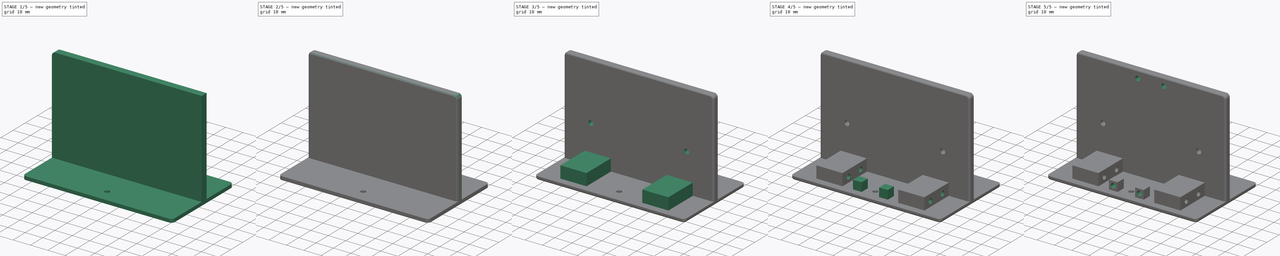
[diagram: build sequence overview — one tinted view per stage of 5, left to right]
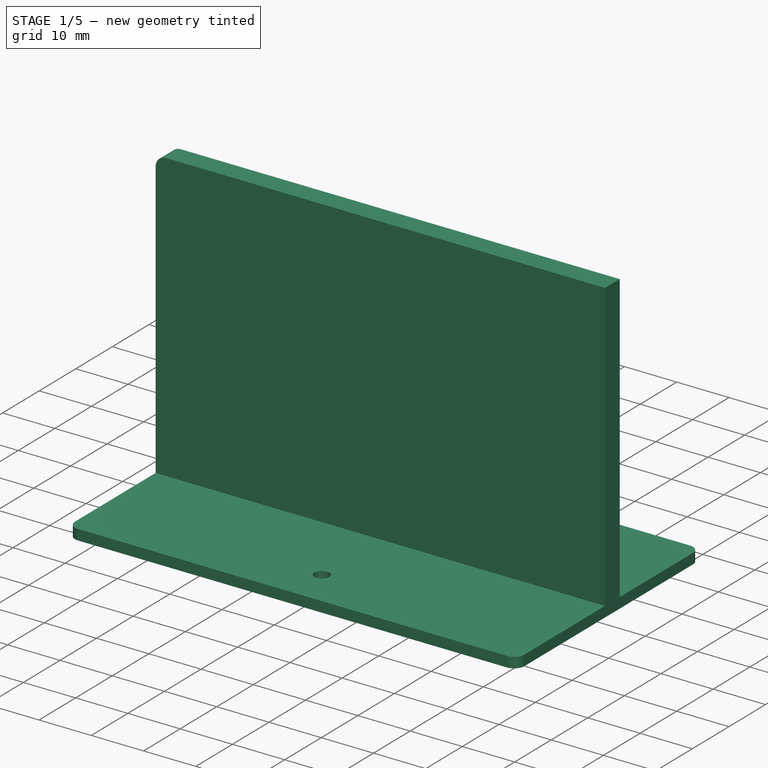
[diagram: stage 1 of 5 — iso view after this stage's code; geometry added in this stage tinted green]
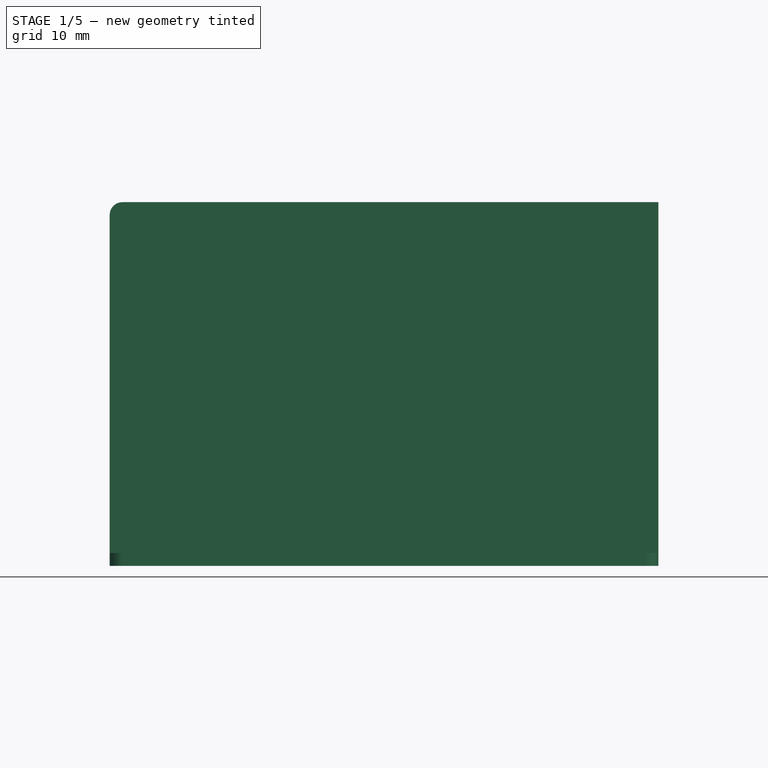
[diagram: stage 1 of 5 — front view after this stage's code; geometry added in this stage tinted green]
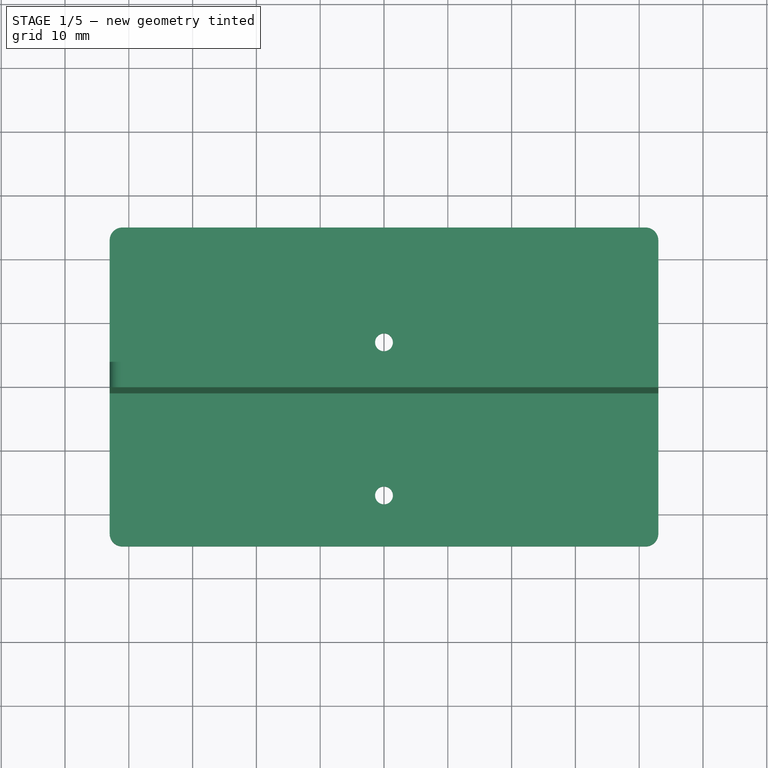
[diagram: stage 1 of 5 — top view after this stage's code; geometry added in this stage tinted green]
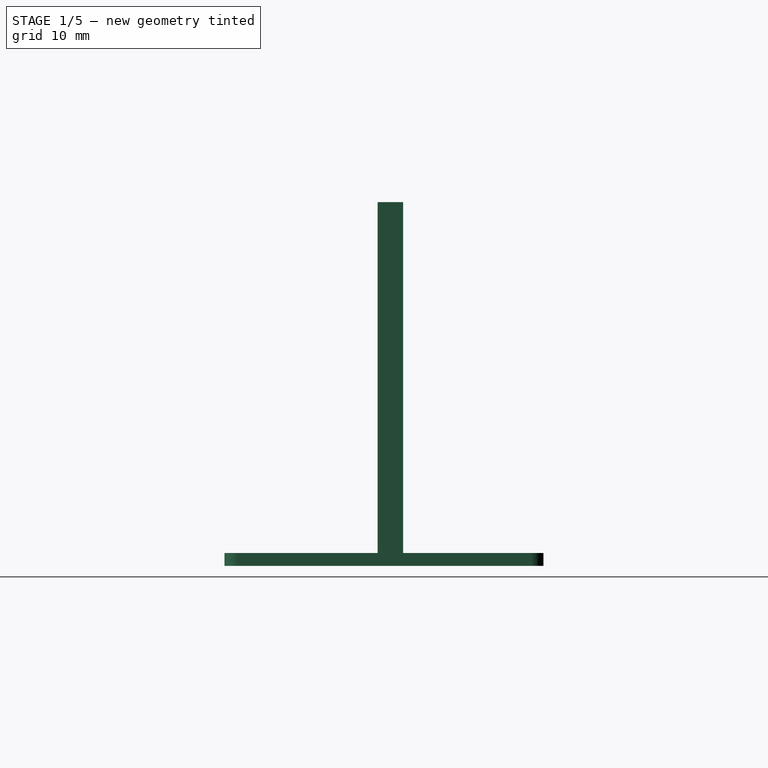
[diagram: stage 1 of 5 — right view after this stage's code; geometry added in this stage tinted green]
FCSTD DOCUMENT  (FreeCAD 0.20R29177 +426 (Git))
Label: 7F_chestbase_battery
License: All rights reserved
LicenseURL: http://en.wikipedia.org/wiki/All_rights_reserved
objects: Sketcher::SketchObject×10, PartDesign::Pocket×6, PartDesign::Fillet×5, PartDesign::Pad×4, Spreadsheet::Sheet×1, PartDesign::Body×1
note: 41 computed .brp shape members not serialized (recipe doc carries the construction recipe); baked Part::Feature solids carry a one-line shape summary decoded from their .brp

FEATURE [Sketcher::SketchObject] Sketch  label="basePlateSketch"
  FullyConstrained = true
  MapMode = 5
  Support = -> [XY_Plane]
  expr: Constraints[19] = Spreadsheet.base_x_len
  expr: Constraints[20] = Spreadsheet.base_y_len
  expr: Constraints[25] = Spreadsheet.servo_horn_center_y
  expr: Constraints[26] = Spreadsheet.servo_horn_outer_y
  expr: Constraints[28] = Spreadsheet.servo_hole_dia
  sketch-geometry (12):
    g0: ArcOfCircle CenterX=-41 CenterY=23 CenterZ=0 NormalX=0 NormalY=0 NormalZ=1 AngleXU=0 Radius=2 StartAngle=1.5708 EndAngle=3.14159
    g1: LineSegment StartX=-41 StartY=25 StartZ=0 EndX=41 EndY=25 EndZ=0
    g2: ArcOfCircle CenterX=41 CenterY=23 CenterZ=0 NormalX=0 NormalY=0 NormalZ=1 AngleXU=0 Radius=2 StartAngle=7e-16 EndAngle=1.5708
    g3: LineSegment StartX=43 StartY=23 StartZ=0 EndX=43 EndY=-23 EndZ=0
    g4: ArcOfCircle CenterX=41 CenterY=-23 CenterZ=0 NormalX=0 NormalY=0 NormalZ=1 AngleXU=0 Radius=2 StartAngle=4.71239 EndAngle=6.28319
    g5: LineSegment StartX=41 StartY=-25 StartZ=0 EndX=-41 EndY=-25 EndZ=0
    g6: ArcOfCircle CenterX=-41 CenterY=-23 CenterZ=0 NormalX=0 NormalY=0 NormalZ=1 AngleXU=0 Radius=2 StartAngle=3.14159 EndAngle=4.71239
    g7: LineSegment StartX=-43 StartY=-23 StartZ=0 EndX=-43 EndY=23 EndZ=0
    g8: GeomPoint X=-43 Y=25 Z=0
    g9: GeomPoint X=43 Y=-25 Z=0
    g10: Circle CenterX=0 CenterY=7 CenterZ=0 NormalX=0 NormalY=0 NormalZ=1 AngleXU=0 Radius=1.4
    g11: Circle CenterX=0 CenterY=-17 CenterZ=0 NormalX=0 NormalY=0 NormalZ=1 AngleXU=0 Radius=1.4
  constraints (29):
    c: Tangent(g0,g1) = 1.5708
    c: Tangent(g1,g2) = 1.5708
    c: Tangent(g2,g3) = 1.5708
    c: Tangent(g3,g4) = 1.5708
    c: Tangent(g4,g5) = 1.5708
    c: Tangent(g5,g6) = 1.5708
    c: Tangent(g6,g7) = 1.5708
    c: Tangent(g7,g0) = 1.5708
    c: Horizontal(g1)
    c: Horizontal(g5)
    c: Vertical(g3)
    c: Vertical(g7)
    c: Equal(g0,g2)
    c: Equal(g2,g4)
    c: Equal(g4,g6)
    c: PointOnObject(g8,g1)
    c: PointOnObject(g8,g7)
    c: PointOnObject(g9,g3)
    c: PointOnObject(g9,g5)
    c: DistanceX(g0,g2) = 86
    c: DistanceY(g5,g0) = 50
    c: Symmetric(g0,g4,g-1)
    c: DistanceX(g2,g2) = 2
    c: PointOnObject(g10,g-2)
    c: PointOnObject(g11,g-2)
    c: DistanceY(g10,g1) = 18
    c: DistanceY(g11,g1) = 42
    c: Equal(g10,g11)
    c: Diameter(g10) = 2.8
FEATURE [Spreadsheet::Sheet] Spreadsheet
  cells = A3=base_y_len; B3(base_y_len)=50; A4=base_x_len; B4(base_x_len)=86; A5=servo_horn_center_y; B5(servo_horn_center_y)=18; A6=servo_horn_outer_y; B6(servo_horn_outer_y)==B5 + 24; A7=servo_hole_dia; B7(servo_hole_dia)=2.8; A8=thickness_plate; B8(thickness_plate)=2; A9=thickness_walls; B9(thickness_walls)=4; A10=battery_wall_y; B10(battery_wall_y)=22; A11=wall_height; B11(wall_height)=55; A12=battery_hole_distance; B12(battery_hole_distance)=55; A13=battery_hole_z_pos; B13(battery_hole_z_pos)=22; C13=batterholder heigth (20mm) plus screwhead (2); A14=servo_outer; B14(servo_outer)=12; A15=servo_holder_x_len; B15(servo_holder_x_len)=15; A16=servo_holder_y_len; B16(servo_holder_y_len)=6.85; A17=servho_holder_z_len; B17(servho_holder_z_len)=20; A18=servo_hole_inner_y; B18(servo_hole_inner_y)=6; C18=1mm from wall, 5mm distance; A19=servo_hole_outer_y; B19(servo_hole_outer_y)=16; C19=1mm from wall, 15mm distance; A20=servo_hole_center_z ; B20(servo_hole_center_z_)==B8 + 3; A21=backplate_side; B21(backplate_side)=5; A22=backplate_x_sym_dist; B22(backplate_x_sym_dist)=5; A23=backplate_hole_z_dist; B23(backplate_hole_z_dist)=5; A24=wall_backplate_hole_z_dist; B24(wall_backplate_hole_z_dist)==B8 + B22 / 2
FEATURE [PartDesign::Pad] Pad  label="basePlatePad"
  Direction = (0,0,1)
  Length = 2
  Length2 = 10
  Profile = -> Sketch
  ReferenceAxis = -> Sketch [N_Axis]
  Type = 0
  expr: Length = Spreadsheet.thickness_plate
FEATURE [Sketcher::SketchObject] Sketch001  label="batteryWallSketch"
  ExternalGeometry = -> [Pad]
  FullyConstrained = true
  MapMode = 5
  Placement = pos=(0,0,2) rot=(0,0,1;0rad)
  Support = -> [Pad]
  expr: Constraints[10] = Spreadsheet.battery_wall_y
  expr: Constraints[11] = Spreadsheet.thickness_walls
  sketch-geometry (4):
    g0: LineSegment StartX=-43 StartY=3 StartZ=0 EndX=43 EndY=3 EndZ=0
    g1: LineSegment StartX=43 StartY=3 StartZ=0 EndX=43 EndY=-1 EndZ=0
    g2: LineSegment StartX=43 StartY=-1 StartZ=0 EndX=-43 EndY=-1 EndZ=0
    g3: LineSegment StartX=-43 StartY=-1 StartZ=0 EndX=-43 EndY=3 EndZ=0
  constraints (12):
    c: Coincident(g0,g1)
    c: Coincident(g1,g2)
    c: Coincident(g2,g3)
    c: Coincident(g3,g0)
    c: Horizontal(g0)
    c: Horizontal(g2)
    c: Vertical(g1)
    c: Vertical(g3)
    c: PointOnObject(g0,g-3)
    c: PointOnObject(g1,g-4)
    c: DistanceY(g0,g-6) = 22
    c: DistanceY(g2,g0) = 4
FEATURE [PartDesign::Pad] Pad001  label="batteryWallPad"
  BaseFeature = -> Pad
  Direction = (0,0,1)
  Length = 55
  Length2 = 10
  Profile = -> Sketch001
  ReferenceAxis = -> Sketch001 [N_Axis]
  Type = 0
  expr: Length = Spreadsheet.wall_height
FEATURE [PartDesign::Fillet] Fillet
  Base = -> Pad001 [Edge34]
  BaseFeature = -> Pad001
  Radius = 2
  SupportTransform = false
  UseAllEdges = false
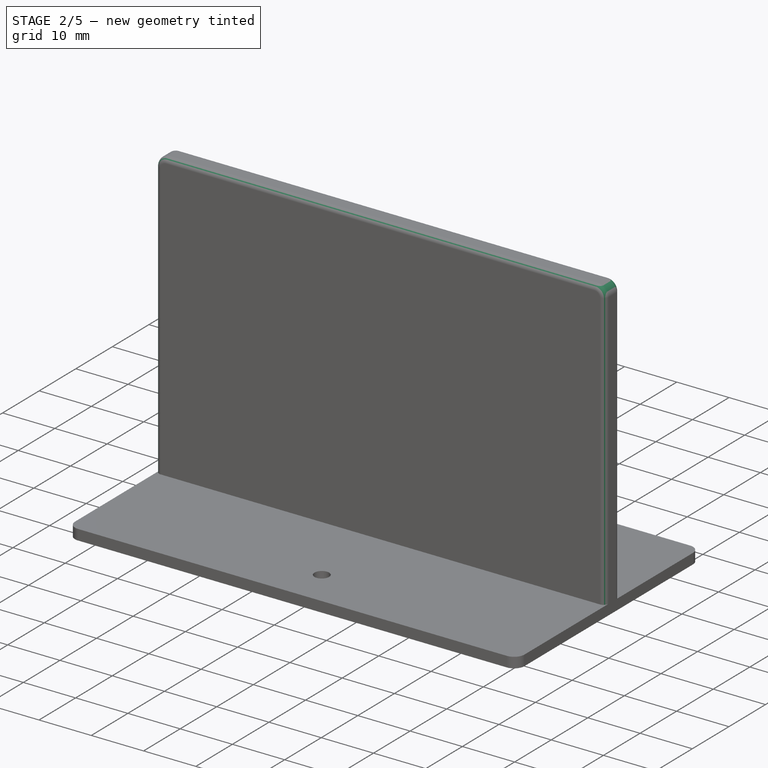
[diagram: stage 2 of 5 — iso view after this stage's code; geometry added in this stage tinted green]
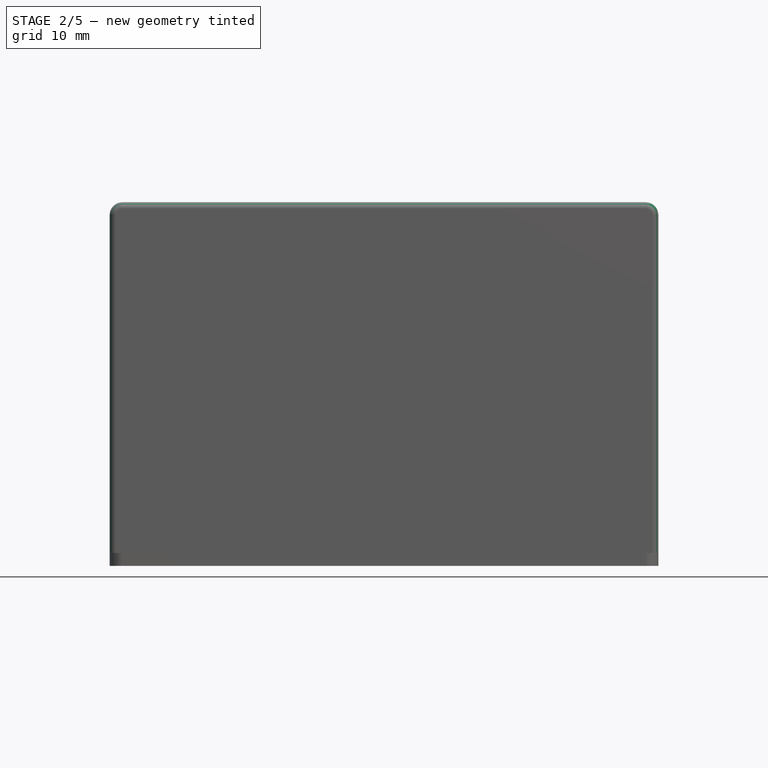
[diagram: stage 2 of 5 — front view after this stage's code; geometry added in this stage tinted green]
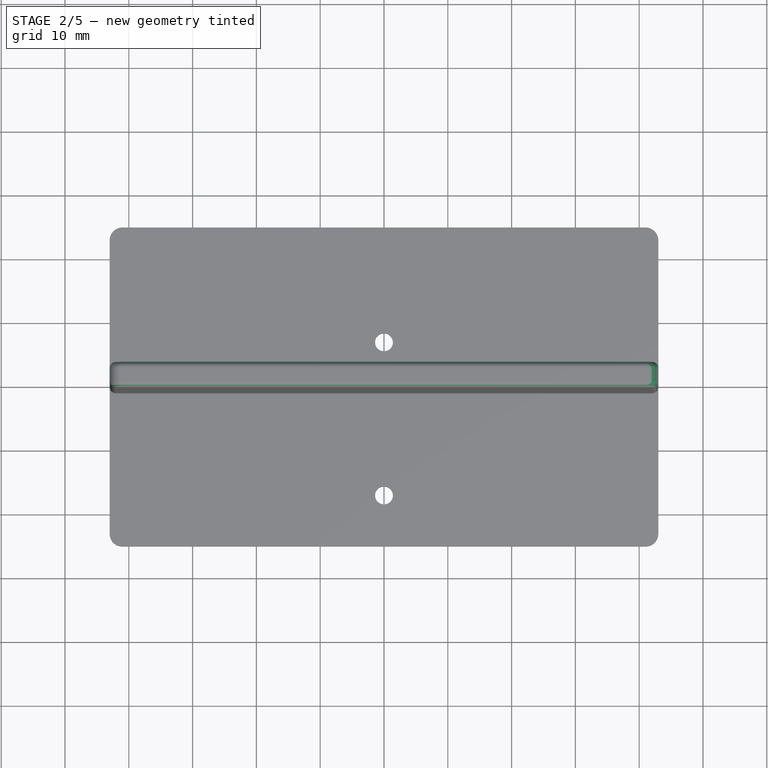
[diagram: stage 2 of 5 — top view after this stage's code; geometry added in this stage tinted green]
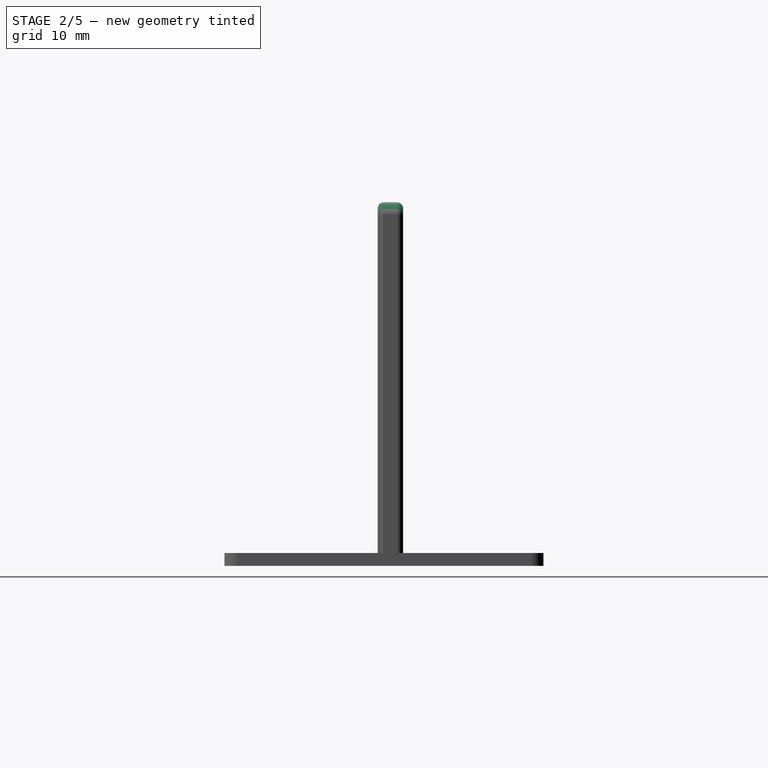
[diagram: stage 2 of 5 — right view after this stage's code; geometry added in this stage tinted green]
FEATURE [PartDesign::Fillet] Fillet001
  Base = -> Fillet [Edge24]
  BaseFeature = -> Fillet
  Radius = 2
  SupportTransform = false
  UseAllEdges = false
FEATURE [PartDesign::Fillet] Fillet002
  Base = -> Fillet001 [Edge17]
  BaseFeature = -> Fillet001
  Radius = 1
  SupportTransform = false
  UseAllEdges = false
FEATURE [PartDesign::Fillet] Fillet003
  Base = -> Fillet002 [Edge12]
  BaseFeature = -> Fillet002
  Radius = 1
  SupportTransform = false
  UseAllEdges = false
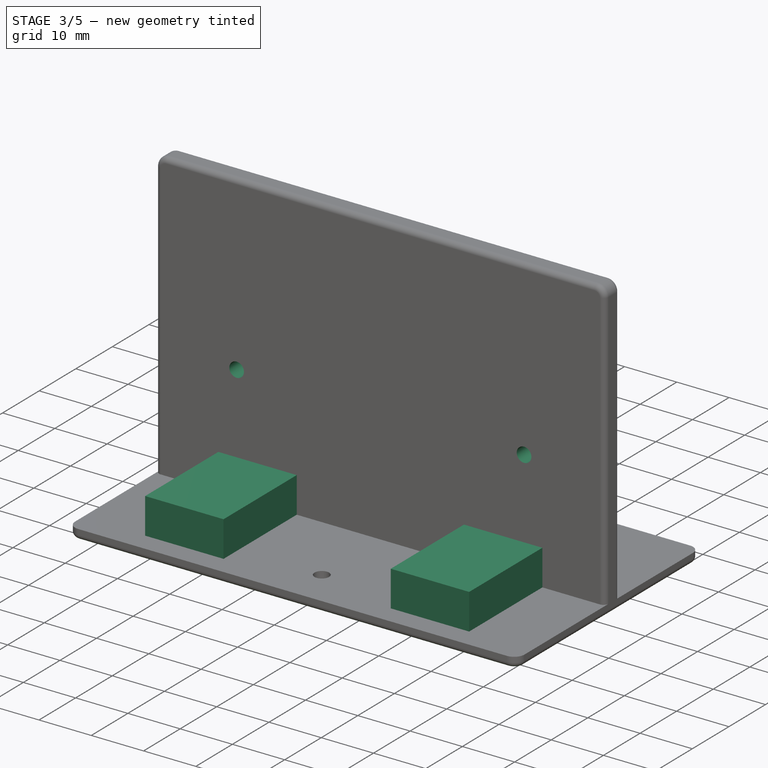
[diagram: stage 3 of 5 — iso view after this stage's code; geometry added in this stage tinted green]
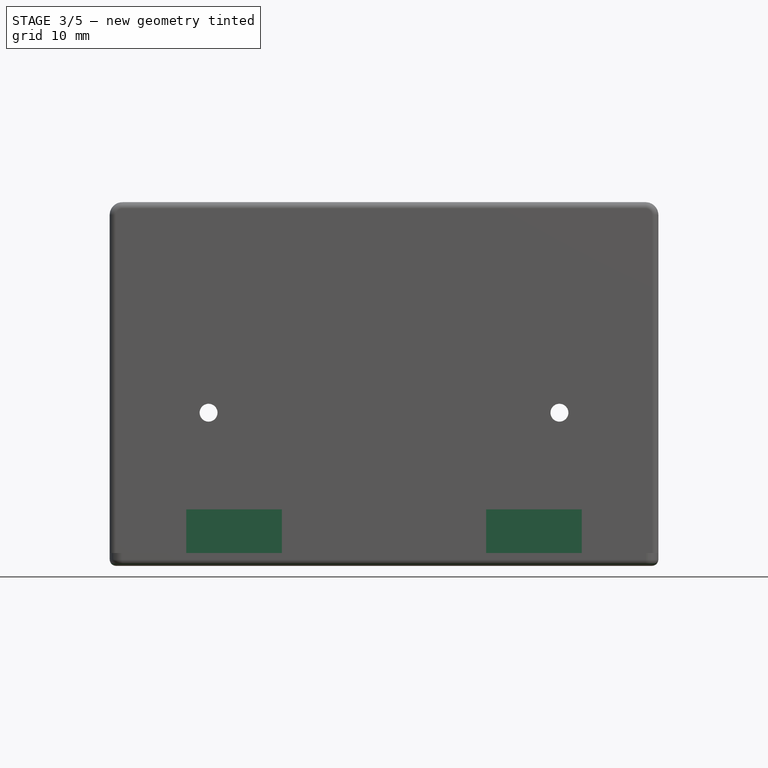
[diagram: stage 3 of 5 — front view after this stage's code; geometry added in this stage tinted green]
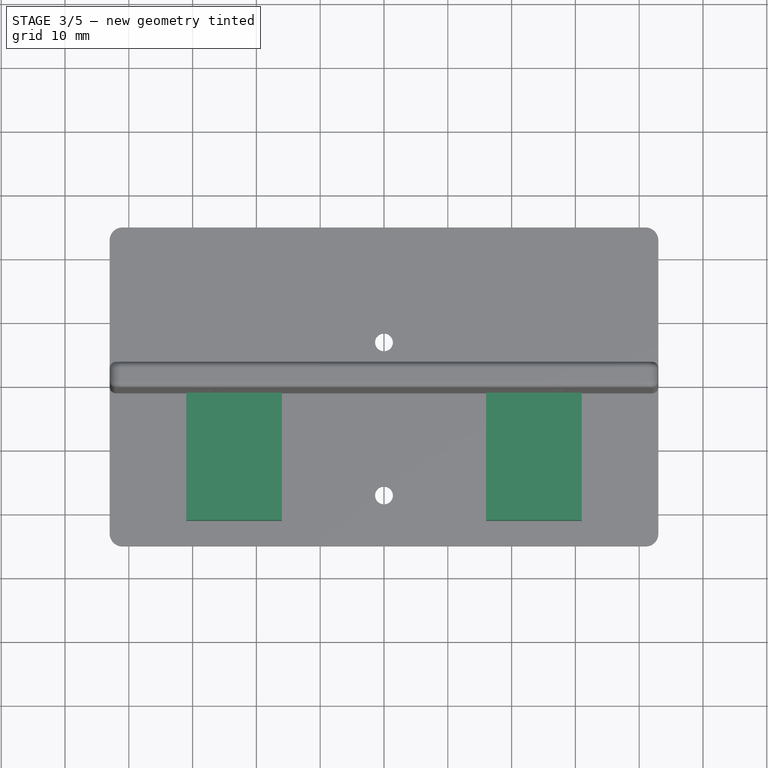
[diagram: stage 3 of 5 — top view after this stage's code; geometry added in this stage tinted green]
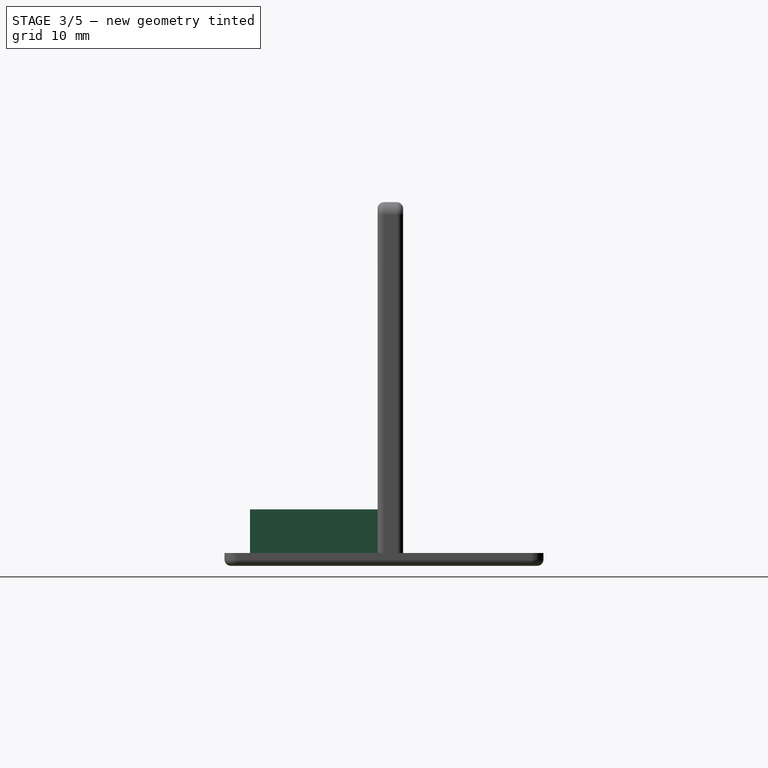
[diagram: stage 3 of 5 — right view after this stage's code; geometry added in this stage tinted green]
FEATURE [PartDesign::Fillet] Fillet004
  Base = -> Fillet003 [Edge62]
  BaseFeature = -> Fillet003
  Radius = 1
  SupportTransform = false
  UseAllEdges = false
FEATURE [Sketcher::SketchObject] Sketch002  label="batterHoleSketch"
  ExternalGeometry = -> [Fillet004]
  FullyConstrained = true
  MapMode = 5
  Placement = pos=(0,3,0) rot=(0,0.707107,0.707107;3.14159rad)
  Support = -> [Fillet004]
  expr: Constraints[1] = Spreadsheet.servo_hole_dia
  expr: Constraints[2] = Spreadsheet.battery_hole_distance
  expr: Constraints[4] = Spreadsheet.battery_hole_z_pos
  sketch-geometry (2):
    g0: Circle CenterX=-27.5 CenterY=24 CenterZ=0 NormalX=0 NormalY=0 NormalZ=1 AngleXU=0 Radius=1.4
    g1: Circle CenterX=27.5 CenterY=24 CenterZ=0 NormalX=0 NormalY=0 NormalZ=1 AngleXU=0 Radius=1.4
  constraints (5):
    c: Equal(g0,g1)
    c: Diameter(g0) = 2.8
    c: DistanceX(g0,g1) = 55
    c: Symmetric(g0,g1,g-2)
    c: DistanceY(g-4,g0) = 22
FEATURE [PartDesign::Pocket] Pocket
  BaseFeature = -> Fillet004
  Direction = (0,-1,2e-16)
  Length = 5
  Length2 = 5
  Profile = -> Sketch002
  ReferenceAxis = -> Sketch002 [N_Axis]
  Type = 0
FEATURE [Sketcher::SketchObject] Sketch003
  ExternalGeometry = -> [Pocket]
  FullyConstrained = true
  MapMode = 5
  Placement = pos=(0,0,2) rot=(0,0,1;0rad)
  Support = -> [Pocket]
  expr: Constraints[18] = Spreadsheet.servo_outer
  expr: Constraints[19] = Spreadsheet.servo_outer
  expr: Constraints[20] = Spreadsheet.servo_holder_x_len
  expr: Constraints[21] = Spreadsheet.servo_holder_x_len
  expr: Constraints[22] = Spreadsheet.servho_holder_z_len
  expr: Constraints[23] = Spreadsheet.servho_holder_z_len
  sketch-geometry (8):
    g0: LineSegment StartX=-31 StartY=-1 StartZ=0 EndX=-16 EndY=-1 EndZ=0
    g1: LineSegment StartX=-16 StartY=-1 StartZ=0 EndX=-16 EndY=-21 EndZ=0
    g2: LineSegment StartX=-16 StartY=-21 StartZ=0 EndX=-31 EndY=-21 EndZ=0
    g3: LineSegment StartX=-31 StartY=-21 StartZ=0 EndX=-31 EndY=-1 EndZ=0
    g4: LineSegment StartX=16 StartY=-1 StartZ=0 EndX=31 EndY=-1 EndZ=0
    g5: LineSegment StartX=31 StartY=-1 StartZ=0 EndX=31 EndY=-21 EndZ=0
    g6: LineSegment StartX=31 StartY=-21 StartZ=0 EndX=16 EndY=-21 EndZ=0
    g7: LineSegment StartX=16 StartY=-21 StartZ=0 EndX=16 EndY=-1 EndZ=0
  constraints (24):
    c: Coincident(g0,g1)
    c: Coincident(g1,g2)
    c: Coincident(g2,g3)
    c: Coincident(g3,g0)
    c: Horizontal(g0)
    c: Horizontal(g2)
    c: Vertical(g1)
    c: Vertical(g3)
    c: PointOnObject(g0,g-5)
    c: Coincident(g4,g5)
    c: Coincident(g5,g6)
    c: Coincident(g6,g7)
    c: Coincident(g7,g4)
    c: Horizontal(g4)
    c: Horizontal(g6)
    c: Vertical(g5)
    c: Vertical(g7)
    c: PointOnObject(g4,g-5)
    c: DistanceX(g-3,g0) = 12
    c: DistanceX(g4,g-4) = 12
    c: DistanceX(g0,g0) = 15
    c: DistanceX(g4,g4) = 15
    c: DistanceY(g6,g4) = 20
    c: DistanceY(g1,g1) = 20
FEATURE [PartDesign::Pad] Pad002
  BaseFeature = -> Pocket
  Direction = (0,0,1)
  Length = 6.85
  Length2 = 10
  Profile = -> Sketch003
  ReferenceAxis = -> Sketch003 [N_Axis]
  Type = 0
  expr: Length = Spreadsheet.servo_holder_y_len
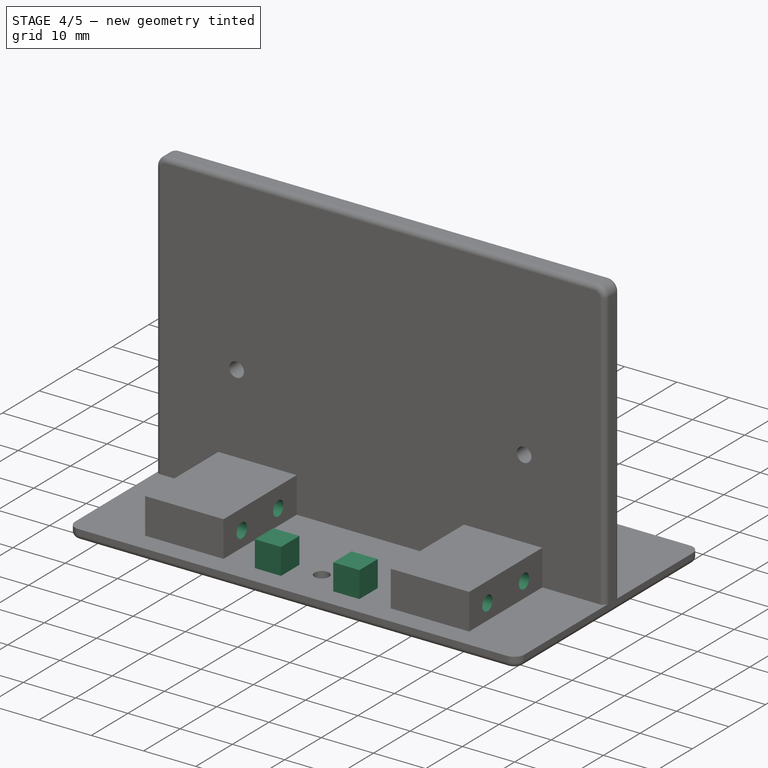
[diagram: stage 4 of 5 — iso view after this stage's code; geometry added in this stage tinted green]
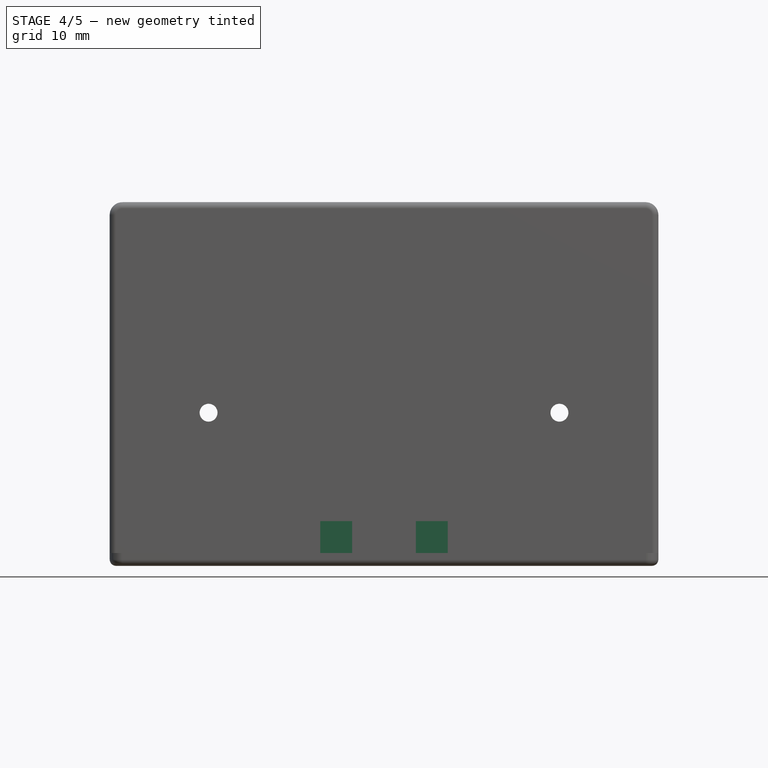
[diagram: stage 4 of 5 — front view after this stage's code; geometry added in this stage tinted green]
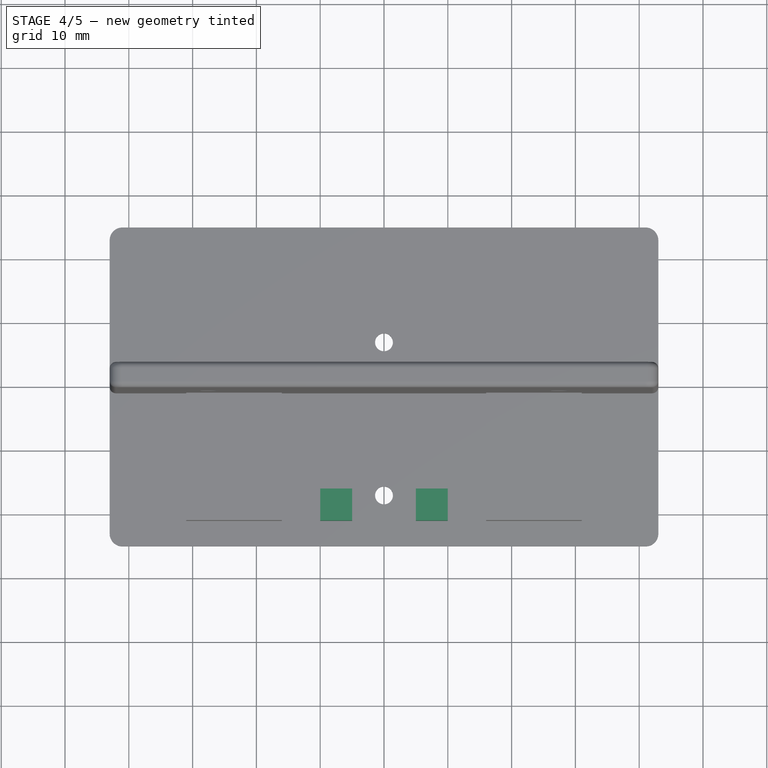
[diagram: stage 4 of 5 — top view after this stage's code; geometry added in this stage tinted green]
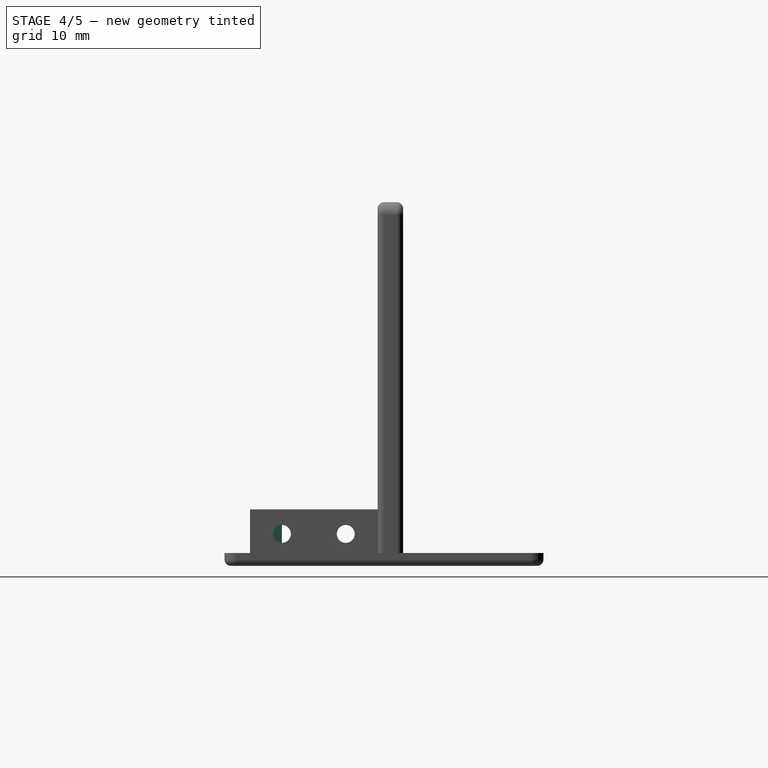
[diagram: stage 4 of 5 — right view after this stage's code; geometry added in this stage tinted green]
FEATURE [Sketcher::SketchObject] Sketch004
  FullyConstrained = true
  MapMode = 5
  Placement = pos=(-31,0,0) rot=(0.57735,-0.57735,-0.57735;2.0944rad)
  Support = -> [Pad002]
  expr: Constraints[0] = Spreadsheet.servo_hole_dia
  expr: Constraints[1] = Spreadsheet.servo_hole_dia
  expr: Constraints[2] = Spreadsheet.servo_hole_inner_y
  expr: Constraints[3] = Spreadsheet.servo_hole_outer_y
  expr: Constraints[5] = Spreadsheet.servo_hole_center_z_
  sketch-geometry (2):
    g0: Circle CenterX=6 CenterY=5 CenterZ=0 NormalX=0 NormalY=0 NormalZ=1 AngleXU=0 Radius=1.4
    g1: Circle CenterX=16 CenterY=5 CenterZ=0 NormalX=0 NormalY=0 NormalZ=1 AngleXU=0 Radius=1.4
  constraints (6):
    c: Diameter(g0) = 2.8
    c: Diameter(g1) = 2.8
    c: DistanceX(g-1,g0) = 6
    c: DistanceX(g-1,g1) = 16
    c: Horizontal(g0,g1)
    c: DistanceY(g-1,g0) = 5
FEATURE [PartDesign::Pocket] Pocket001
  BaseFeature = -> Pad002
  Direction = (1,0,0)
  Length = 15
  Length2 = 5
  Profile = -> Sketch004
  ReferenceAxis = -> Sketch004 [N_Axis]
  Type = 0
  expr: Length = Spreadsheet.servo_holder_x_len
FEATURE [Sketcher::SketchObject] Sketch005
  FullyConstrained = true
  MapMode = 5
  Placement = pos=(31,0,0) rot=(0.57735,0.57735,0.57735;2.0944rad)
  Support = -> [Pocket001]
  expr: Constraints[2] = Spreadsheet.servo_hole_dia
  expr: Constraints[3] = Spreadsheet.servo_hole_center_z_
  expr: Constraints[4] = Spreadsheet.servo_hole_inner_y
  expr: Constraints[5] = Spreadsheet.servo_hole_outer_y
  sketch-geometry (2):
    g0: Circle CenterX=-16 CenterY=5 CenterZ=0 NormalX=0 NormalY=0 NormalZ=1 AngleXU=0 Radius=1.4
    g1: Circle CenterX=-6 CenterY=5 CenterZ=0 NormalX=0 NormalY=0 NormalZ=1 AngleXU=0 Radius=1.4
  constraints (6):
    c: Horizontal(g0,g1)
    c: Equal(g1,g0)
    c: Diameter(g1) = 2.8
    c: DistanceY(g-1,g1) = 5
    c: DistanceX(g1,g-1) = 6
    c: DistanceX(g0,g-1) = 16
FEATURE [PartDesign::Pocket] Pocket002
  BaseFeature = -> Pocket001
  Direction = (-1,0,0)
  Length = 20
  Length2 = 5
  Profile = -> Sketch005
  ReferenceAxis = -> Sketch005 [N_Axis]
  Type = 0
  expr: Length = Spreadsheet.servho_holder_z_len
FEATURE [Sketcher::SketchObject] Sketch006
  ExternalGeometry = -> [Pocket002]
  FullyConstrained = true
  MapMode = 5
  Placement = pos=(0,0,2) rot=(0,0,1;0rad)
  Support = -> [Pocket002]
  expr: Constraints[19] = Spreadsheet.backplate_side
  expr: Constraints[20] = Spreadsheet.backplate_x_sym_dist
  sketch-geometry (8):
    g0: LineSegment StartX=-10 StartY=-16 StartZ=0 EndX=-5 EndY=-16 EndZ=0
    g1: LineSegment StartX=-5 StartY=-16 StartZ=0 EndX=-5 EndY=-21 EndZ=0
    g2: LineSegment StartX=-5 StartY=-21 StartZ=0 EndX=-10 EndY=-21 EndZ=0
    g3: LineSegment StartX=-10 StartY=-21 StartZ=0 EndX=-10 EndY=-16 EndZ=0
    g4: LineSegment StartX=5 StartY=-16 StartZ=0 EndX=10 EndY=-16 EndZ=0
    g5: LineSegment StartX=10 StartY=-16 StartZ=0 EndX=10 EndY=-21 EndZ=0
    g6: LineSegment StartX=10 StartY=-21 StartZ=0 EndX=5 EndY=-21 EndZ=0
    g7: LineSegment StartX=5 StartY=-21 StartZ=0 EndX=5 EndY=-16 EndZ=0
  constraints (22):
    c: Coincident(g0,g1)
    c: Coincident(g1,g2)
    c: Coincident(g2,g3)
    c: Coincident(g3,g0)
    c: Horizontal(g0)
    c: Horizontal(g2)
    c: Vertical(g1)
    c: Vertical(g3)
    c: Coincident(g4,g5)
    c: Coincident(g5,g6)
    c: Coincident(g6,g7)
    c: Coincident(g7,g4)
    c: Horizontal(g6)
    c: Vertical(g5)
    c: Vertical(g7)
    c: Symmetric(g0,g4,g-2)
    c: Symmetric(g0,g4,g-2)
    c: Horizontal(g2,g5)
    c: Equal(g0,g3)
    c: DistanceX(g0,g0) = 5
    c: DistanceX(g1,g-1) = 5
    c: Horizontal(g-3,g2)
FEATURE [PartDesign::Pad] Pad003
  BaseFeature = -> Pocket002
  Direction = (0,0,1)
  Length = 5
  Length2 = 10
  Profile = -> Sketch006
  ReferenceAxis = -> Sketch006 [N_Axis]
  Type = 0
  expr: Length = Spreadsheet.backplate_hole_z_dist
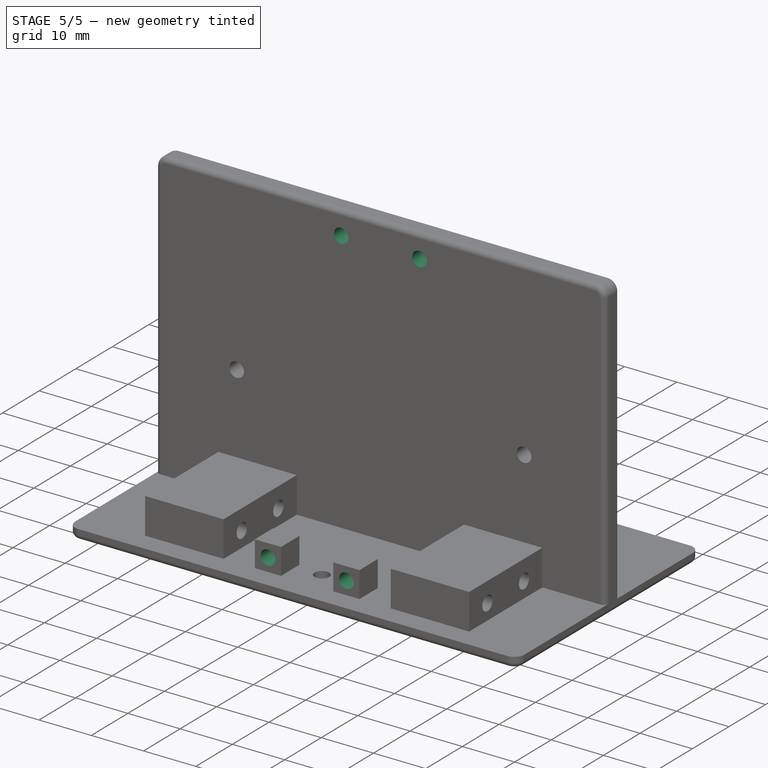
[diagram: stage 5 of 5 — iso view after this stage's code; geometry added in this stage tinted green]
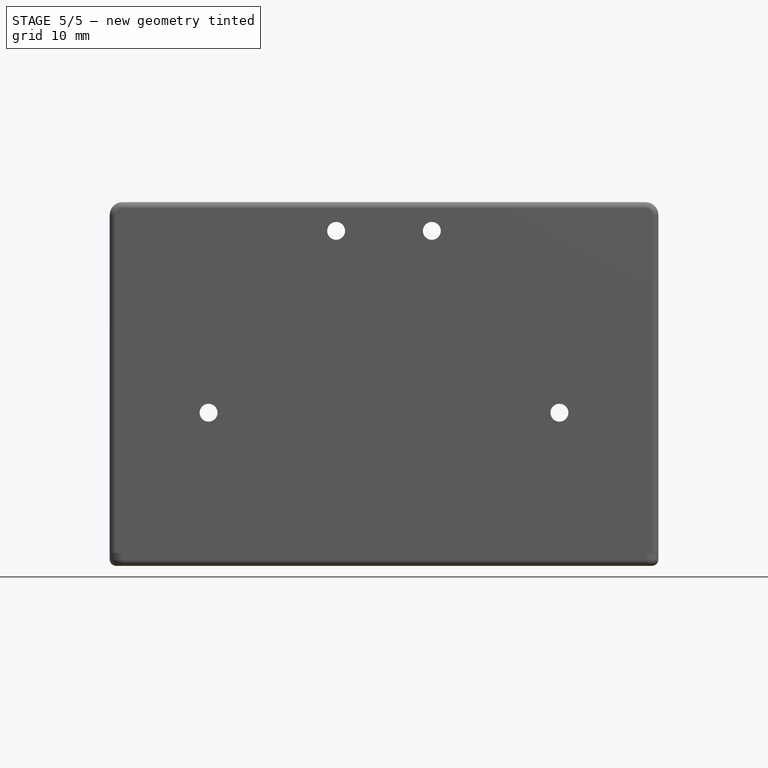
[diagram: stage 5 of 5 — front view after this stage's code; geometry added in this stage tinted green]
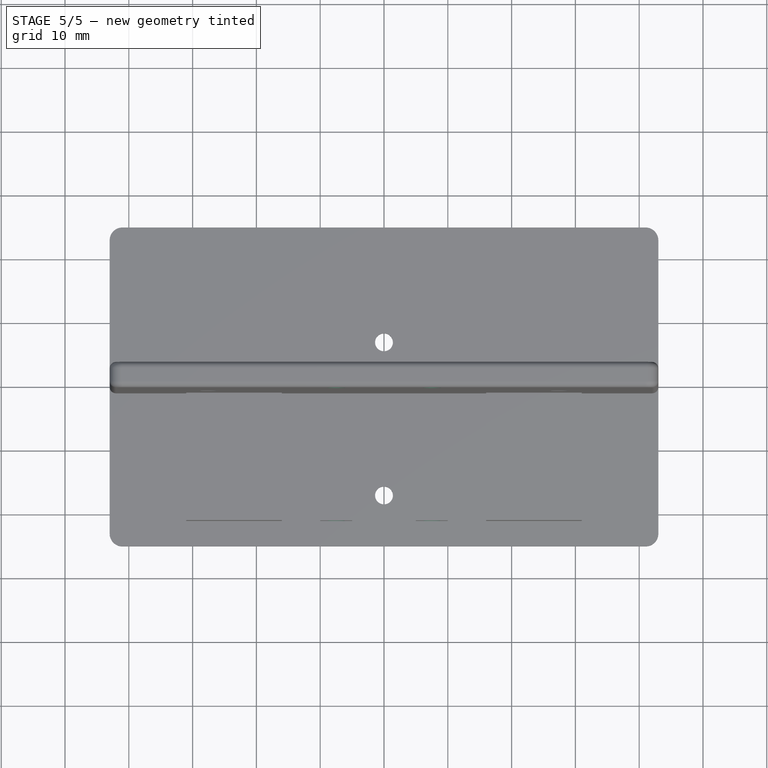
[diagram: stage 5 of 5 — top view after this stage's code; geometry added in this stage tinted green]
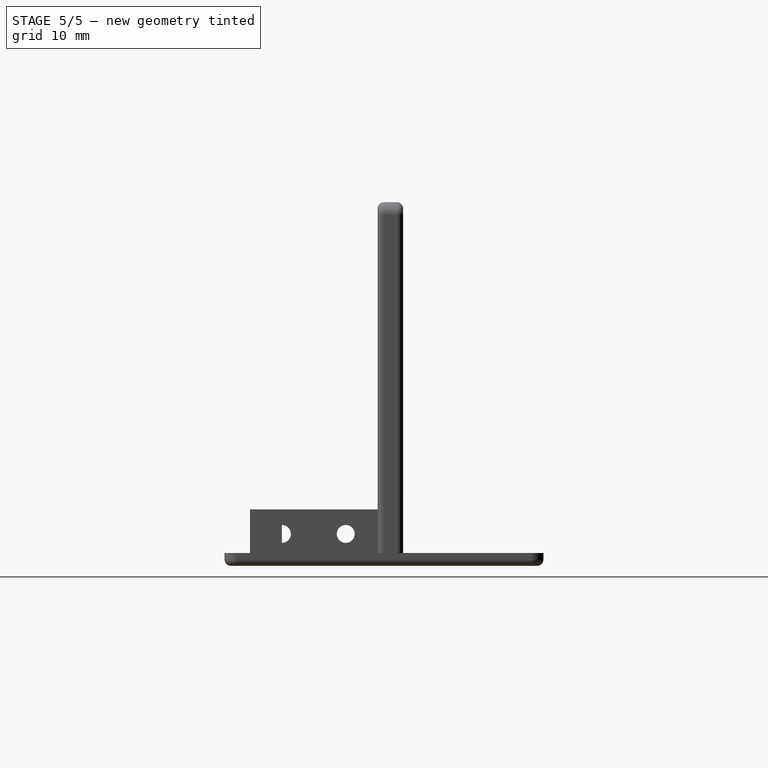
[diagram: stage 5 of 5 — right view after this stage's code; geometry added in this stage tinted green]
FEATURE [Sketcher::SketchObject] Sketch007
  ExternalGeometry = -> [Pad003]
  FullyConstrained = true
  MapMode = 5
  Placement = pos=(0,-21,0) rot=(1,0,0;1.5708rad)
  Support = -> [Pad003]
  expr: Constraints[0] = Spreadsheet.servo_hole_dia
  sketch-geometry (1):
    g0: Circle CenterX=-7.5 CenterY=4.5 CenterZ=0 NormalX=0 NormalY=0 NormalZ=1 AngleXU=0 Radius=1.4
  constraints (2):
    c: Diameter(g0) = 2.8
    c: Symmetric(g-3,g-4,g0)
FEATURE [PartDesign::Pocket] Pocket003
  BaseFeature = -> Pad003
  Direction = (0,1,-2e-16)
  Length = 5
  Length2 = 5
  Profile = -> Sketch007
  ReferenceAxis = -> Sketch007 [N_Axis]
  Type = 0
  expr: Length = Spreadsheet.backplate_hole_z_dist
FEATURE [Sketcher::SketchObject] Sketch008
  ExternalGeometry = -> [Pocket003]
  FullyConstrained = true
  MapMode = 5
  Placement = pos=(0,-21,0) rot=(1,0,0;1.5708rad)
  Support = -> [Pocket003]
  expr: Constraints[0] = Spreadsheet.servo_hole_dia
  sketch-geometry (1):
    g0: Circle CenterX=7.5 CenterY=4.5 CenterZ=0 NormalX=0 NormalY=0 NormalZ=1 AngleXU=0 Radius=1.4
  constraints (2):
    c: Diameter(g0) = 2.8
    c: Symmetric(g-3,g-4,g0)
FEATURE [PartDesign::Pocket] Pocket004
  BaseFeature = -> Pocket003
  Direction = (0,1,-2e-16)
  Length = 5
  Length2 = 5
  Profile = -> Sketch008
  ReferenceAxis = -> Sketch008 [N_Axis]
  Type = 0
  expr: Length = Spreadsheet.backplate_hole_z_dist
FEATURE [Sketcher::SketchObject] Sketch009
  ExternalGeometry = -> [Pocket004]
  FullyConstrained = true
  MapMode = 5
  Placement = pos=(0,-1,0) rot=(1,0,0;1.5708rad)
  Support = -> [Pocket004]
  expr: Constraints[3] = Spreadsheet.servo_hole_dia
  expr: Constraints[4] = Spreadsheet.wall_backplate_hole_z_dist
  expr: Constraints[5] = Spreadsheet.wall_backplate_hole_z_dist
  sketch-geometry (2):
    g0: Circle CenterX=-7.5 CenterY=52.5 CenterZ=0 NormalX=0 NormalY=0 NormalZ=1 AngleXU=0 Radius=1.4
    g1: Circle CenterX=7.5 CenterY=52.5 CenterZ=0 NormalX=0 NormalY=0 NormalZ=1 AngleXU=0 Radius=1.4
  constraints (6):
    c: Vertical(g-4,g0)
    c: Vertical(g1,g-5)
    c: Equal(g0,g1)
    c: Diameter(g0) = 2.8
    c: DistanceY(g1,g-3) = 4.5
    c: DistanceY(g0,g-3) = 4.5
FEATURE [PartDesign::Pocket] Pocket005
  BaseFeature = -> Pocket004
  Direction = (0,1,-2e-16)
  Length = 4
  Length2 = 5
  Profile = -> Sketch009
  ReferenceAxis = -> Sketch009 [N_Axis]
  Type = 0
  expr: Length = Spreadsheet.thickness_walls
FEATURE [PartDesign::Body] Body
  Group = -> [Sketch,Pad,Sketch001,Pad001,Fillet,Fillet001,Fillet002,Fillet003,Fillet004,Sketch002,Pocket,Sketch003,Pad002,Sketch004,Pocket001,Sketch005,Pocket002,Sketch006,Pad003,Sketch007,Pocket003,Sketch008,Pocket004,Sketch009,Pocket005]
  Origin = -> Origin
  Tip = -> Pocket005
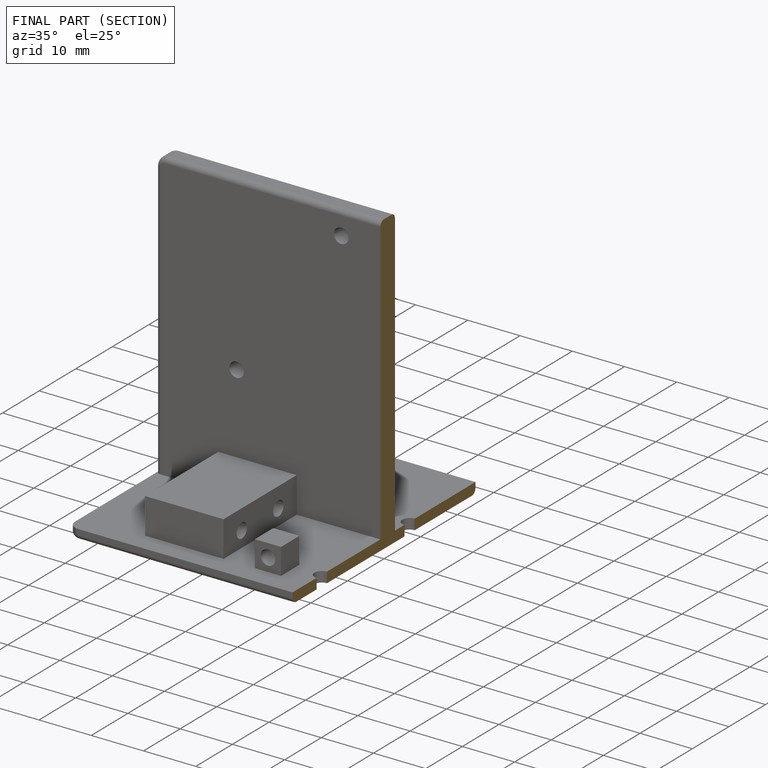
[diagram: finished part — half-section view (interior)]
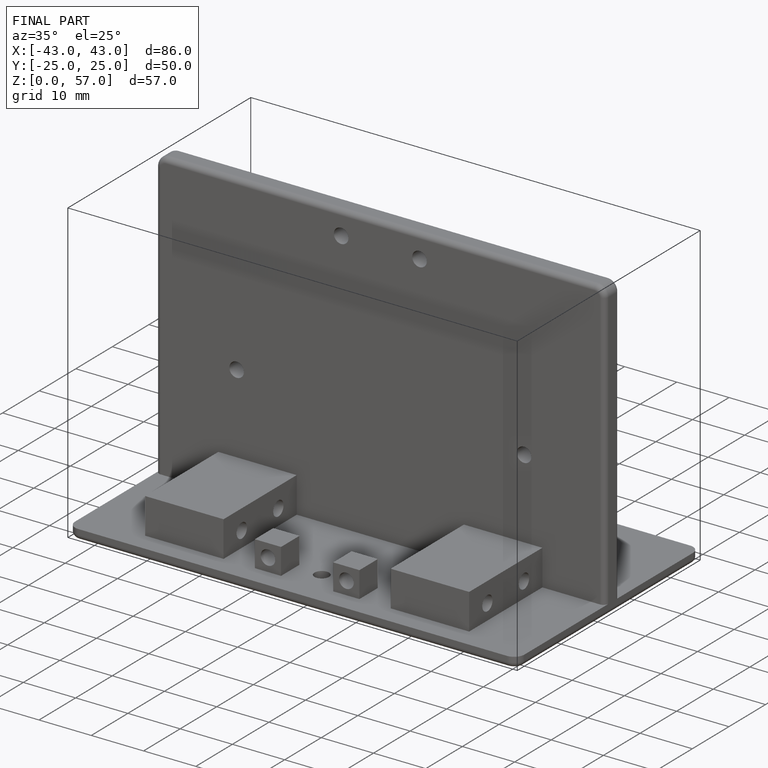
[diagram: finished part — iso view with bounding-box wireframe]
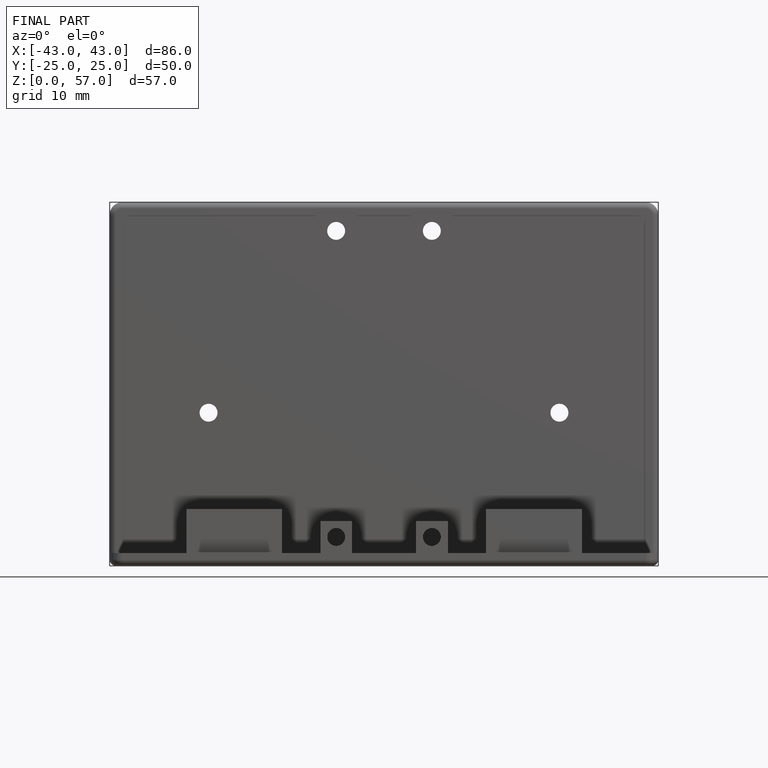
[diagram: finished part — front view with bounding-box wireframe]
